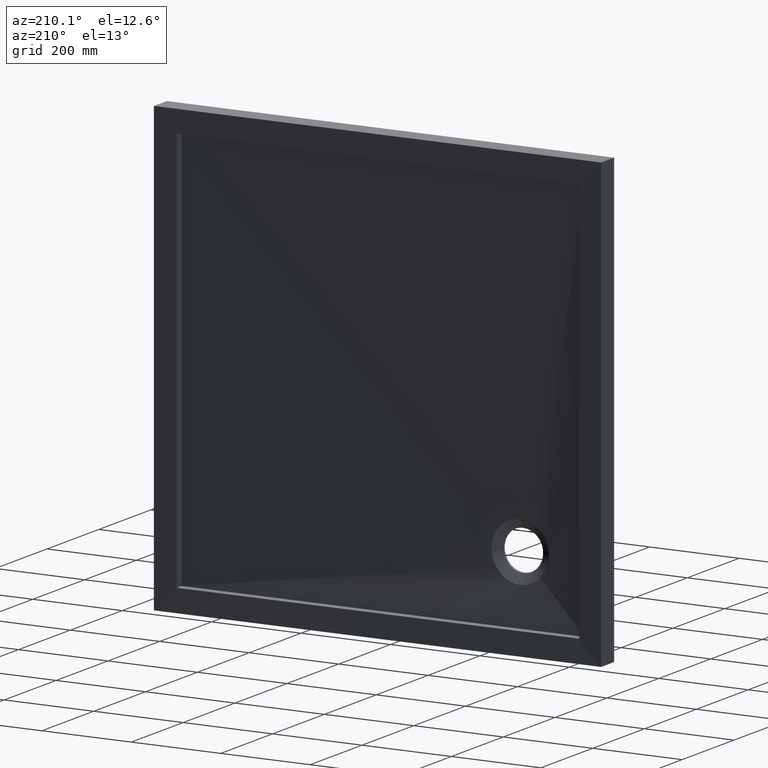
[diagram: clean part render]
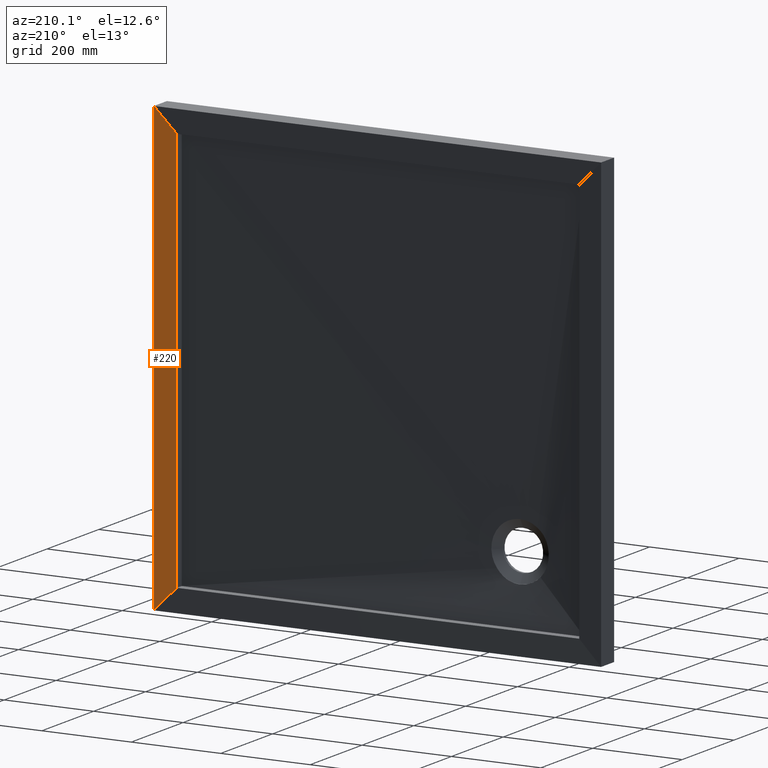
[diagram: same view with one face highlighted and labeled with its STEP entity id]
A machine part, auxiliary view. The second image highlights one B-rep face of the part: STEP entity #220.
In plain terms, the highlighted planar face has unit normal (-0.0349, 0.9994, 0).
Its self-contained STEP definition (entity closure, byte-faithful):
#18 = AXIS2_PLACEMENT_3D ( 'NONE', #659, #357, #860 ) ;
#24 = ORIENTED_EDGE ( 'NONE', *, *, #861, .F. ) ;
#73 = VERTEX_POINT ( 'NONE', #395 ) ;
#121 = VERTEX_POINT ( 'NONE', #793 ) ;
#132 = PLANE ( 'NONE',  #18 ) ;
#142 = DIRECTION ( 'NONE',  ( 3.700743415417188600E-016, 0.0000000000000000000, 1.000000000000000000 ) ) ;
#145 = DIRECTION ( 'NONE',  ( -0.7068913075831631000, -0.02468518840782799400, -0.7068913075831643200 ) ) ;
#190 = EDGE_LOOP ( 'NONE', ( #866, #832, #455, #24 ) ) ;
#220 = ADVANCED_FACE ( 'NONE', ( #876 ), #132, .T. ) ;
#304 = LINE ( 'NONE', #950, #693 ) ;
#337 = VECTOR ( 'NONE', #142, 1000.000000000000000 ) ;
#347 = EDGE_CURVE ( 'NONE', #73, #424, #511, .T. ) ;
#357 = DIRECTION ( 'NONE',  ( -0.03489949670249563300, 0.9993908270190959800, 1.291540826231345900E-017 ) ) ;
#385 = VECTOR ( 'NONE', #145, 1000.000000000000100 ) ;
#395 = CARTESIAN_POINT ( 'NONE',  ( 450.0000000000002300, 48.25745360236177800, 450.0000000000001700 ) ) ;
#424 = VERTEX_POINT ( 'NONE', #741 ) ;
#455 = ORIENTED_EDGE ( 'NONE', *, *, #777, .F. ) ;
#475 = DIRECTION ( 'NONE',  ( -3.700743415417188600E-016, 0.0000000000000000000, -1.000000000000000000 ) ) ;
#486 = VERTEX_POINT ( 'NONE', #903 ) ;
#500 = LINE ( 'NONE', #907, #337 ) ;
#511 = LINE ( 'NONE', #513, #748 ) ;
#513 = CARTESIAN_POINT ( 'NONE',  ( 449.9999999999998900, 48.25745360236189200, -449.9999999999999400 ) ) ;
#659 = CARTESIAN_POINT ( 'NONE',  ( 450.0000000000002300, 48.25745360236189200, 450.0000000000001100 ) ) ;
#693 = VECTOR ( 'NONE', #752, 1000.000000000000000 ) ;
#698 = CARTESIAN_POINT ( 'NONE',  ( 0.2742113370292620400, 32.55268300197023700, 0.2742113370284848800 ) ) ;
#741 = CARTESIAN_POINT ( 'NONE',  ( 449.9999999999998900, 48.25745360236177800, -450.0000000000000000 ) ) ;
#748 = VECTOR ( 'NONE', #475, 1000.000000000000000 ) ;
#752 = DIRECTION ( 'NONE',  ( -0.7068913075831633200, -0.02468518840782802200, 0.7068913075831641000 ) ) ;
#758 = LINE ( 'NONE', #698, #385 ) ;
#763 = EDGE_CURVE ( 'NONE', #121, #424, #304, .T. ) ;
#777 = EDGE_CURVE ( 'NONE', #486, #73, #758, .T. ) ;
#793 = CARTESIAN_POINT ( 'NONE',  ( 499.9000000000048100, 50.00000000000000000, -499.9000000000049200 ) ) ;
#832 = ORIENTED_EDGE ( 'NONE', *, *, #347, .F. ) ;
#860 = DIRECTION ( 'NONE',  ( 3.700743415417188600E-016, -0.0000000000000000000, 1.000000000000000000 ) ) ;
#861 = EDGE_CURVE ( 'NONE', #121, #486, #500, .T. ) ;
#866 = ORIENTED_EDGE ( 'NONE', *, *, #763, .T. ) ;
#876 = FACE_OUTER_BOUND ( 'NONE', #190, .T. ) ;
#903 = CARTESIAN_POINT ( 'NONE',  ( 499.9000000000050900, 50.00000000000000000, 499.9000000000050400 ) ) ;
#907 = CARTESIAN_POINT ( 'NONE',  ( 499.9000000000050900, 50.00000000000000000, 450.0000000000001100 ) ) ;
#950 = CARTESIAN_POINT ( 'NONE',  ( 0.2742113370283738600, 32.55268300197020200, -0.2742113370282628400 ) ) ;